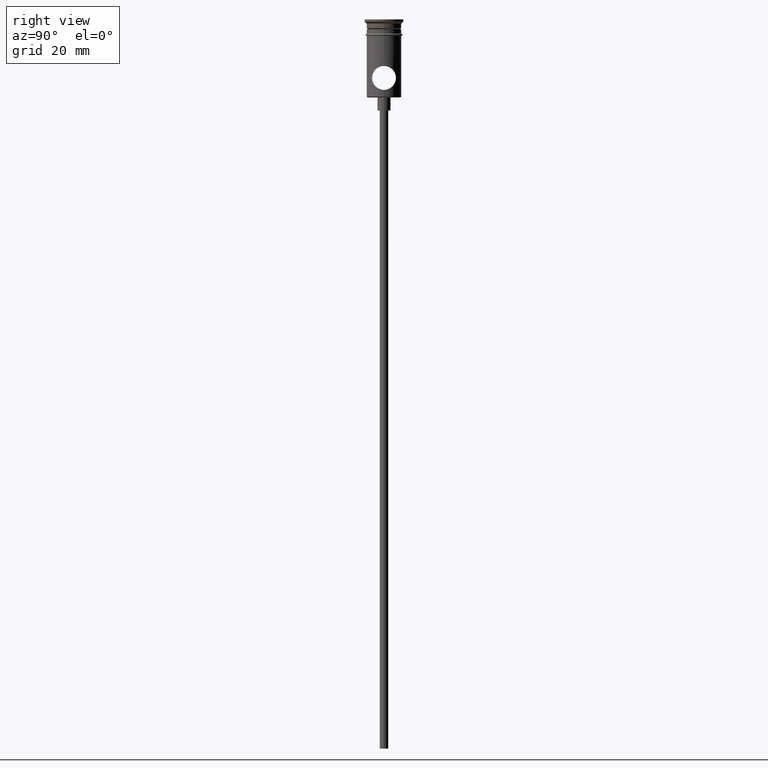
[diagram: clean part render]
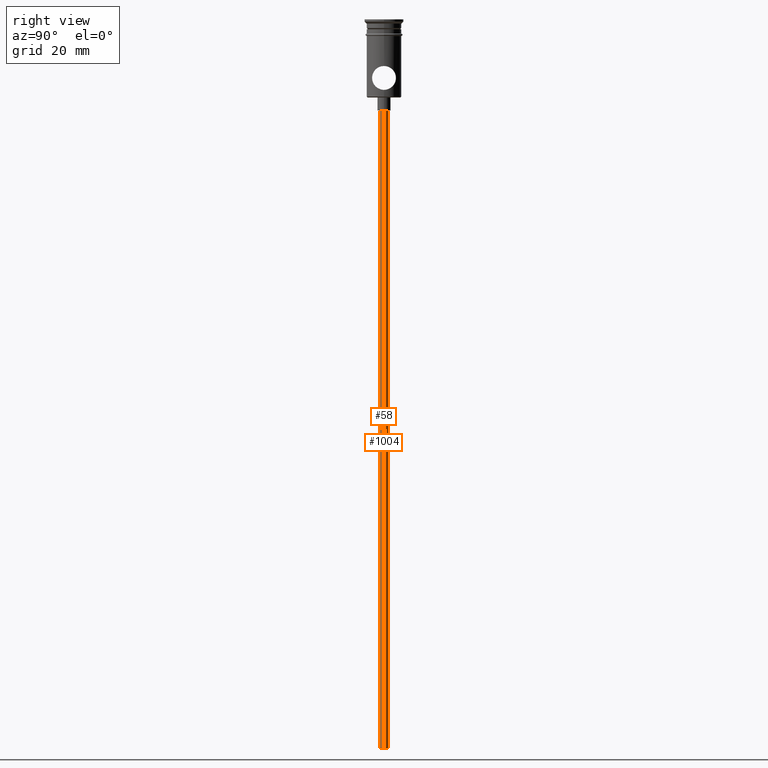
[diagram: same view with one multi-face feature highlighted, each face labeled with its STEP entity id]
A machine part, right view. The highlighted faces form ONE feature: a constant-radius fillet chain: 2 tangent blend faces with common blend radius 1 mm. The faces share edges in the B-rep.
Their STEP definitions:
[1] entity #1004 (Cylinder):
#51 = AXIS2_PLACEMENT_3D ( 'NONE', #1360, #821, #386 ) ;
#82 = CARTESIAN_POINT ( 'NONE',  ( 0.000000000000000000, 0.000000000000000000, -167.9999999999999716 ) ) ;
#93 = CIRCLE ( 'NONE', #1396, 0.9999999999999997780 ) ;
#143 = VECTOR ( 'NONE', #1339, 1000.000000000000000 ) ;
#149 = VERTEX_POINT ( 'NONE', #1092 ) ;
#155 = VERTEX_POINT ( 'NONE', #1069 ) ;
#166 = FACE_OUTER_BOUND ( 'NONE', #313, .T. ) ;
#249 = LINE ( 'NONE', #578, #143 ) ;
#287 = ORIENTED_EDGE ( 'NONE', *, *, #859, .F. ) ;
#303 = DIRECTION ( 'NONE',  ( -1.000000000000000000, 0.000000000000000000, 0.000000000000000000 ) ) ;
#311 = DIRECTION ( 'NONE',  ( 0.000000000000000000, 0.000000000000000000, -1.000000000000000000 ) ) ;
#313 = EDGE_LOOP ( 'NONE', ( #583, #1237, #331, #287 ) ) ;
#331 = ORIENTED_EDGE ( 'NONE', *, *, #677, .T. ) ;
#379 = EDGE_CURVE ( 'NONE', #149, #155, #93, .T. ) ;
#386 = DIRECTION ( 'NONE',  ( 1.000000000000000000, 0.000000000000000000, 0.000000000000000000 ) ) ;
#387 = CARTESIAN_POINT ( 'NONE',  ( -0.9999999999999997780, 1.224646799147352961E-16, -20.99999999999999645 ) ) ;
#478 = DIRECTION ( 'NONE',  ( -0.000000000000000000, -0.000000000000000000, 1.000000000000000000 ) ) ;
#524 = CIRCLE ( 'NONE', #862, 0.9999999999999997780 ) ;
#534 = VERTEX_POINT ( 'NONE', #387 ) ;
#578 = CARTESIAN_POINT ( 'NONE',  ( 0.9999999999999997780, 0.000000000000000000, -167.9999999999999716 ) ) ;
#583 = ORIENTED_EDGE ( 'NONE', *, *, #379, .F. ) ;
#647 = DIRECTION ( 'NONE',  ( 0.000000000000000000, 0.000000000000000000, -1.000000000000000000 ) ) ;
#677 = EDGE_CURVE ( 'NONE', #534, #1183, #524, .T. ) ;
#821 = DIRECTION ( 'NONE',  ( -0.000000000000000000, -0.000000000000000000, 1.000000000000000000 ) ) ;
#859 = EDGE_CURVE ( 'NONE', #155, #1183, #249, .T. ) ;
#862 = AXIS2_PLACEMENT_3D ( 'NONE', #1290, #647, #303 ) ;
#910 = LINE ( 'NONE', #1139, #1060 ) ;
#966 = EDGE_CURVE ( 'NONE', #149, #534, #910, .T. ) ;
#981 = CARTESIAN_POINT ( 'NONE',  ( 0.9999999999999997780, 0.000000000000000000, -20.99999999999999645 ) ) ;
#1004 = ADVANCED_FACE ( 'NONE', ( #166 ), #1025, .T. ) ;
#1025 = CYLINDRICAL_SURFACE ( 'NONE', #51, 0.9999999999999997780 ) ;
#1060 = VECTOR ( 'NONE', #478, 1000.000000000000000 ) ;
#1069 = CARTESIAN_POINT ( 'NONE',  ( 0.9999999999999997780, 0.000000000000000000, -167.9999999999999716 ) ) ;
#1092 = CARTESIAN_POINT ( 'NONE',  ( -0.9999999999999997780, 1.224646799147352961E-16, -167.9999999999999716 ) ) ;
#1139 = CARTESIAN_POINT ( 'NONE',  ( -0.9999999999999997780, 1.224646799147352961E-16, -167.9999999999999716 ) ) ;
#1156 = DIRECTION ( 'NONE',  ( -1.000000000000000000, 0.000000000000000000, 0.000000000000000000 ) ) ;
#1183 = VERTEX_POINT ( 'NONE', #981 ) ;
#1237 = ORIENTED_EDGE ( 'NONE', *, *, #966, .T. ) ;
#1290 = CARTESIAN_POINT ( 'NONE',  ( 0.000000000000000000, 0.000000000000000000, -20.99999999999999645 ) ) ;
#1339 = DIRECTION ( 'NONE',  ( -0.000000000000000000, -0.000000000000000000, 1.000000000000000000 ) ) ;
#1360 = CARTESIAN_POINT ( 'NONE',  ( 0.000000000000000000, 0.000000000000000000, -167.9999999999999716 ) ) ;
#1396 = AXIS2_PLACEMENT_3D ( 'NONE', #82, #311, #1156 ) ;
[2] entity #58 (Cylinder):
#36 = CARTESIAN_POINT ( 'NONE',  ( 0.000000000000000000, 0.000000000000000000, -167.9999999999999716 ) ) ;
#58 = ADVANCED_FACE ( 'NONE', ( #533 ), #1147, .T. ) ;
#143 = VECTOR ( 'NONE', #1339, 1000.000000000000000 ) ;
#149 = VERTEX_POINT ( 'NONE', #1092 ) ;
#155 = VERTEX_POINT ( 'NONE', #1069 ) ;
#186 = EDGE_CURVE ( 'NONE', #1183, #534, #1299, .T. ) ;
#249 = LINE ( 'NONE', #578, #143 ) ;
#353 = DIRECTION ( 'NONE',  ( -1.000000000000000000, 0.000000000000000000, 0.000000000000000000 ) ) ;
#387 = CARTESIAN_POINT ( 'NONE',  ( -0.9999999999999997780, 1.224646799147352961E-16, -20.99999999999999645 ) ) ;
#430 = DIRECTION ( 'NONE',  ( 1.000000000000000000, 0.000000000000000000, 0.000000000000000000 ) ) ;
#478 = DIRECTION ( 'NONE',  ( -0.000000000000000000, -0.000000000000000000, 1.000000000000000000 ) ) ;
#533 = FACE_OUTER_BOUND ( 'NONE', #699, .T. ) ;
#534 = VERTEX_POINT ( 'NONE', #387 ) ;
#567 = ORIENTED_EDGE ( 'NONE', *, *, #1163, .F. ) ;
#578 = CARTESIAN_POINT ( 'NONE',  ( 0.9999999999999997780, 0.000000000000000000, -167.9999999999999716 ) ) ;
#617 = CARTESIAN_POINT ( 'NONE',  ( 0.000000000000000000, 0.000000000000000000, -167.9999999999999716 ) ) ;
#699 = EDGE_LOOP ( 'NONE', ( #1230, #567, #1254, #1325 ) ) ;
#703 = AXIS2_PLACEMENT_3D ( 'NONE', #898, #1113, #1349 ) ;
#730 = AXIS2_PLACEMENT_3D ( 'NONE', #617, #1042, #430 ) ;
#817 = CIRCLE ( 'NONE', #1206, 0.9999999999999997780 ) ;
#859 = EDGE_CURVE ( 'NONE', #155, #1183, #249, .T. ) ;
#873 = DIRECTION ( 'NONE',  ( 0.000000000000000000, 0.000000000000000000, -1.000000000000000000 ) ) ;
#898 = CARTESIAN_POINT ( 'NONE',  ( 0.000000000000000000, 0.000000000000000000, -20.99999999999999645 ) ) ;
#910 = LINE ( 'NONE', #1139, #1060 ) ;
#966 = EDGE_CURVE ( 'NONE', #149, #534, #910, .T. ) ;
#981 = CARTESIAN_POINT ( 'NONE',  ( 0.9999999999999997780, 0.000000000000000000, -20.99999999999999645 ) ) ;
#1042 = DIRECTION ( 'NONE',  ( -0.000000000000000000, -0.000000000000000000, 1.000000000000000000 ) ) ;
#1060 = VECTOR ( 'NONE', #478, 1000.000000000000000 ) ;
#1069 = CARTESIAN_POINT ( 'NONE',  ( 0.9999999999999997780, 0.000000000000000000, -167.9999999999999716 ) ) ;
#1092 = CARTESIAN_POINT ( 'NONE',  ( -0.9999999999999997780, 1.224646799147352961E-16, -167.9999999999999716 ) ) ;
#1113 = DIRECTION ( 'NONE',  ( 0.000000000000000000, 0.000000000000000000, -1.000000000000000000 ) ) ;
#1139 = CARTESIAN_POINT ( 'NONE',  ( -0.9999999999999997780, 1.224646799147352961E-16, -167.9999999999999716 ) ) ;
#1147 = CYLINDRICAL_SURFACE ( 'NONE', #730, 0.9999999999999997780 ) ;
#1163 = EDGE_CURVE ( 'NONE', #155, #149, #817, .T. ) ;
#1183 = VERTEX_POINT ( 'NONE', #981 ) ;
#1206 = AXIS2_PLACEMENT_3D ( 'NONE', #36, #873, #353 ) ;
#1230 = ORIENTED_EDGE ( 'NONE', *, *, #966, .F. ) ;
#1254 = ORIENTED_EDGE ( 'NONE', *, *, #859, .T. ) ;
#1299 = CIRCLE ( 'NONE', #703, 0.9999999999999997780 ) ;
#1325 = ORIENTED_EDGE ( 'NONE', *, *, #186, .T. ) ;
#1339 = DIRECTION ( 'NONE',  ( -0.000000000000000000, -0.000000000000000000, 1.000000000000000000 ) ) ;
#1349 = DIRECTION ( 'NONE',  ( -1.000000000000000000, 0.000000000000000000, 0.000000000000000000 ) ) ;